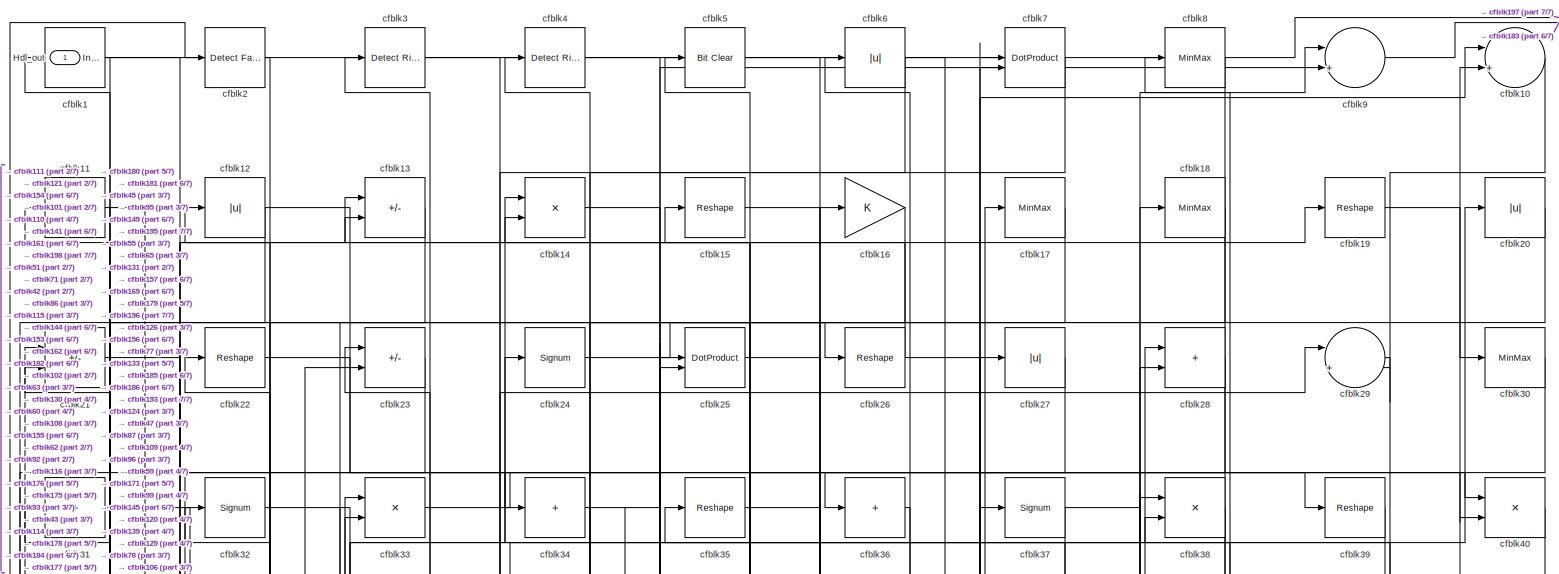
[diagram: root canvas - part 1/7, full width, top band]
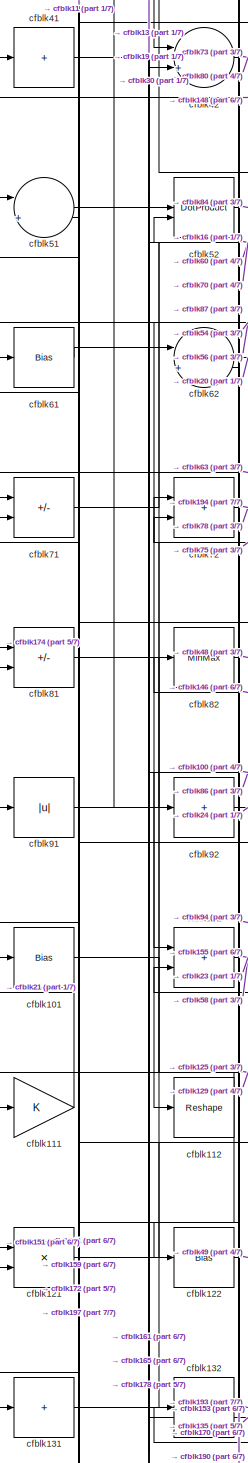
[diagram: root canvas - part 2/7, middle left region]
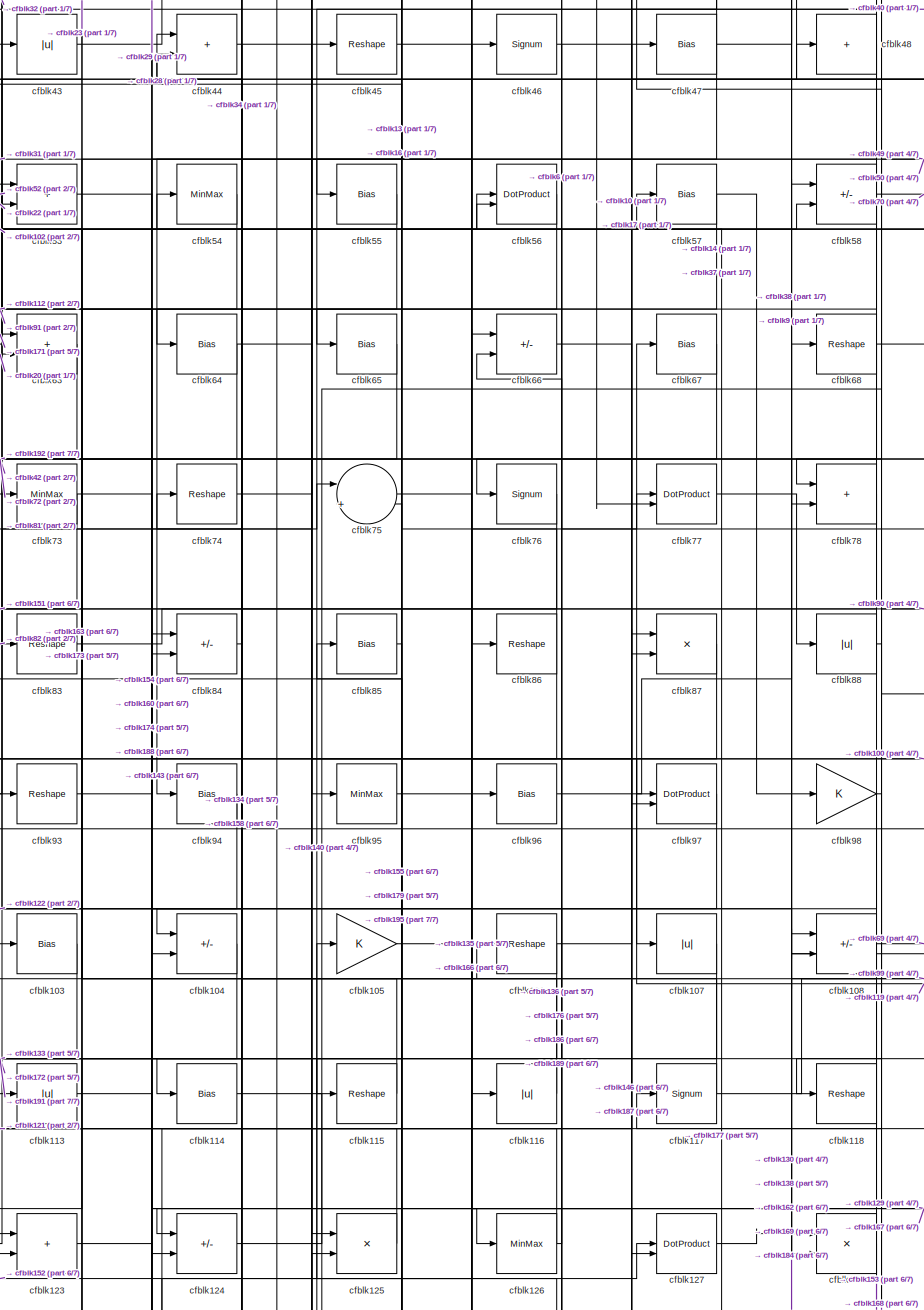
[diagram: root canvas - part 3/7, central region]
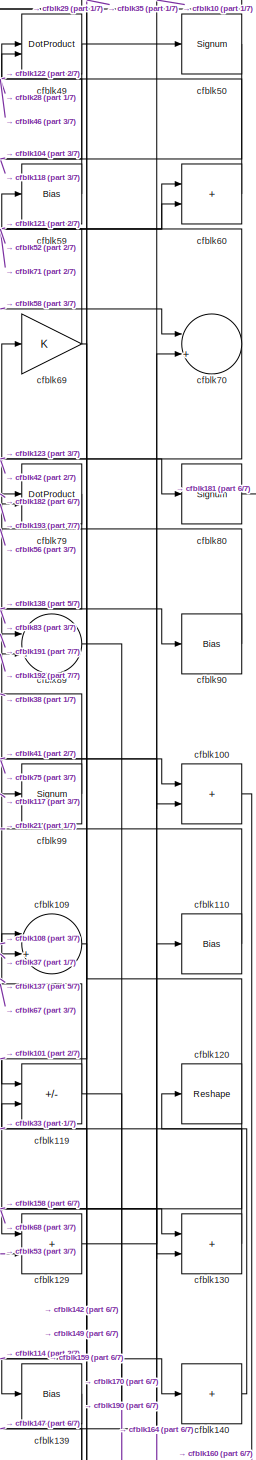
[diagram: root canvas - part 4/7, middle right region]
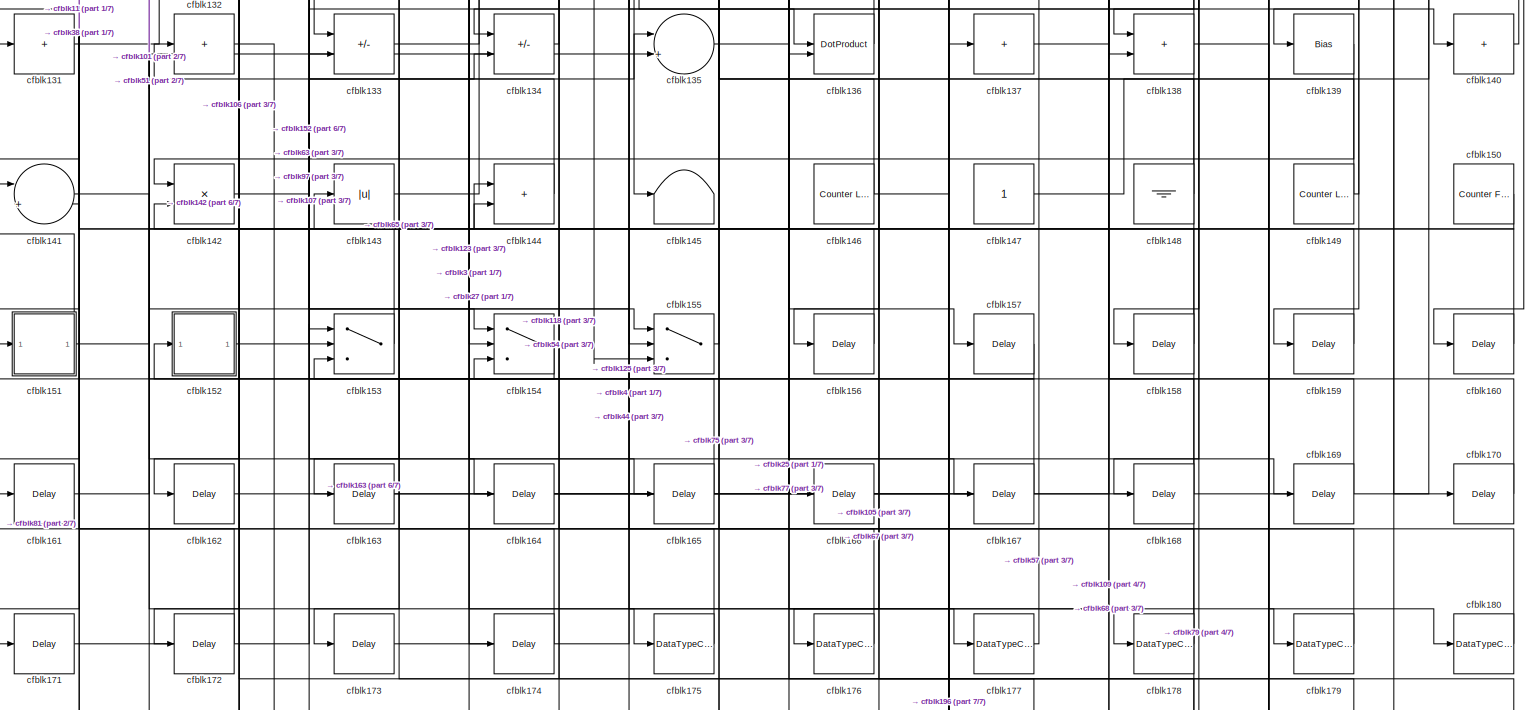
[diagram: root canvas - part 5/7, full width, bottom band]
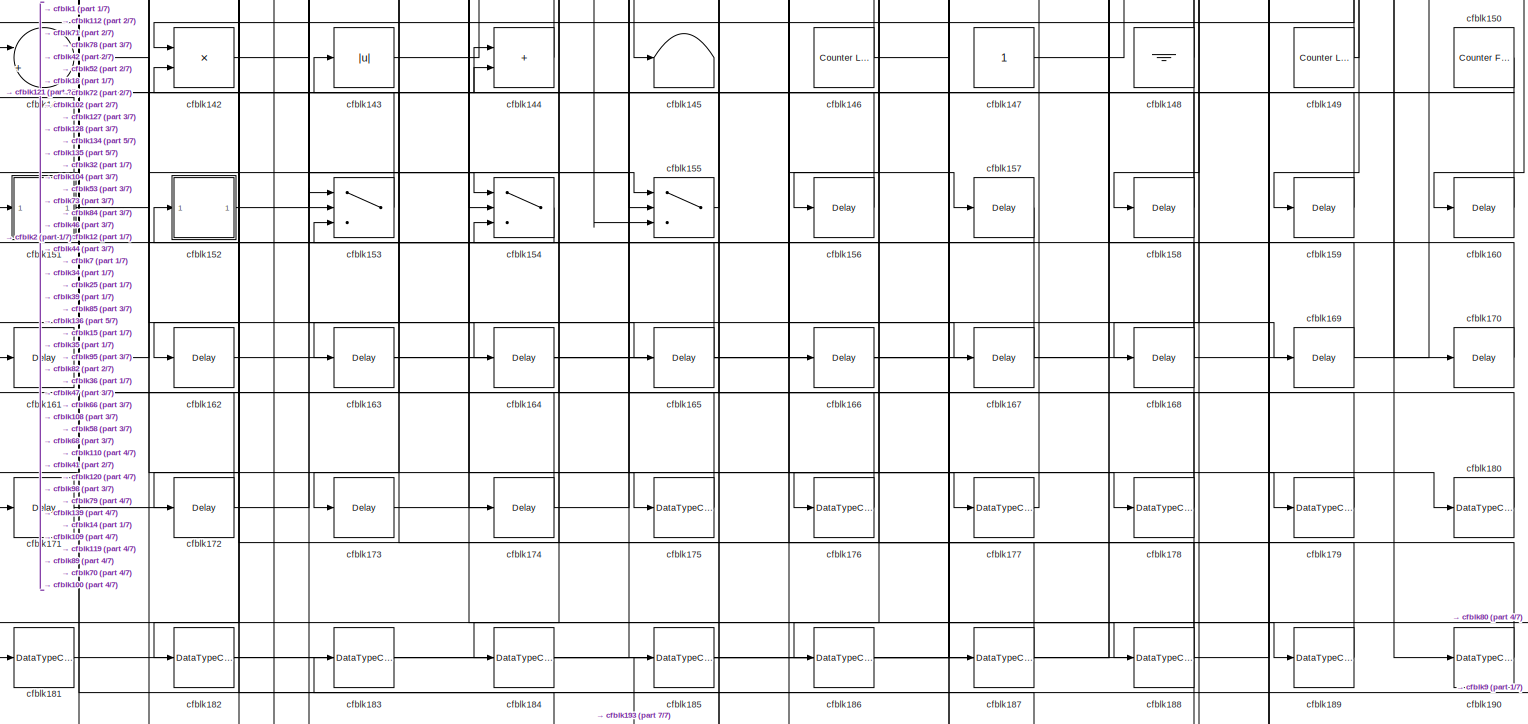
[diagram: root canvas - part 6/7, full width, bottom band]
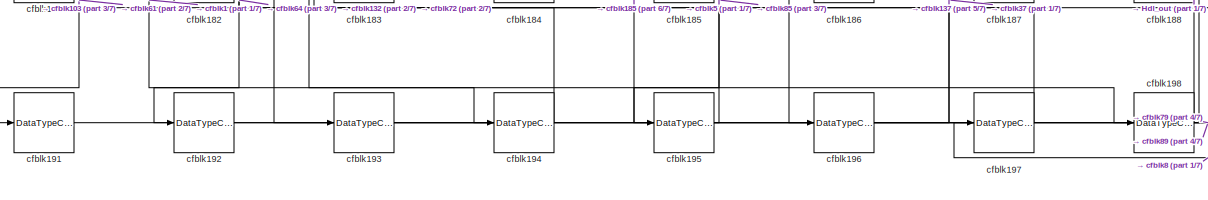
[diagram: root canvas - part 7/7, full width, bottom band]
MODEL slx_da9849ad95af
KIND model
CONFIG AbsTol = auto
CONFIG EnableMultiTasking = off
CONFIG FixedStep = auto
CONFIG MaxStep = auto
CONFIG MinStep = auto
CONFIG RelTol = 1e-3
CONFIG SampleTimeConstraint = Unconstrained
CONFIG SolverName = VariableStepAuto
CONFIG StartTime = 0.0
CONFIG StopTime = 10.0
BLOCK [Outport] Hdl_out
  OutDataTypeStr = uint8
BLOCK [Reference] cfblk1  REF=simulink/Logic and Bit
Operations/Detect
Increase
  LibrarySourceBlock = hdlsllib/Logic and Bit\nOperations/Detect\nIncrease
  SourceBlock = simulink/Logic and Bit\nOperations/Detect\nIncrease
  SourceType = Detect Increase
BLOCK [Sum] cfblk10
  Inputs = |++
  OutDataTypeStr = uint8
BLOCK [Sum] cfblk100
  IconShape = rectangular
  OutDataTypeStr = uint8
BLOCK [Bias] cfblk101
  Bias = 0.0
  SaturateOnIntegerOverflow = off
BLOCK [Sum] cfblk102
  IconShape = rectangular
  OutDataTypeStr = uint8
BLOCK [Bias] cfblk103
  Bias = 0.0
  SaturateOnIntegerOverflow = off
BLOCK [Sum] cfblk104
  IconShape = rectangular
  Inputs = +-
  OutDataTypeStr = uint8
BLOCK [Gain] cfblk105
  OutDataTypeStr = uint8
BLOCK [Reshape] cfblk106
BLOCK [Abs] cfblk107
  OutDataTypeStr = uint8
  SaturateOnIntegerOverflow = off
BLOCK [Sum] cfblk108
  IconShape = rectangular
  Inputs = +-
  OutDataTypeStr = uint8
BLOCK [Sum] cfblk109
  Inputs = |++
  OutDataTypeStr = uint8
BLOCK [Bias] cfblk11
  Bias = 0.0
  SaturateOnIntegerOverflow = off
BLOCK [Bias] cfblk110
  Bias = 0.0
  SaturateOnIntegerOverflow = off
BLOCK [Gain] cfblk111
  OutDataTypeStr = uint8
BLOCK [Reshape] cfblk112
BLOCK [Abs] cfblk113
  OutDataTypeStr = uint8
  SaturateOnIntegerOverflow = off
BLOCK [Bias] cfblk114
  Bias = 0.0
  SaturateOnIntegerOverflow = off
BLOCK [Reshape] cfblk115
BLOCK [Abs] cfblk116
  OutDataTypeStr = uint8
  SaturateOnIntegerOverflow = off
BLOCK [Signum] cfblk117
BLOCK [Reshape] cfblk118
BLOCK [Sum] cfblk119
  IconShape = rectangular
  Inputs = +-
  OutDataTypeStr = uint8
BLOCK [Abs] cfblk12
  OutDataTypeStr = uint8
  SaturateOnIntegerOverflow = off
BLOCK [Reshape] cfblk120
BLOCK [Product] cfblk121
  Inputs = */
  OutDataTypeStr = uint8
  RndMeth = Zero
  SaturateOnIntegerOverflow = on
BLOCK [Bias] cfblk122
  Bias = 0.0
  SaturateOnIntegerOverflow = off
BLOCK [Sum] cfblk123
  IconShape = rectangular
  OutDataTypeStr = uint8
BLOCK [Sum] cfblk124
  IconShape = rectangular
  Inputs = +-
  OutDataTypeStr = uint8
BLOCK [Product] cfblk125
  Inputs = */
  OutDataTypeStr = uint8
  RndMeth = Zero
  SaturateOnIntegerOverflow = on
BLOCK [MinMax] cfblk126
  OutDataTypeStr = uint8
BLOCK [DotProduct] cfblk127
  OutDataTypeStr = uint8
BLOCK [Product] cfblk128
  Inputs = */
  OutDataTypeStr = uint8
  RndMeth = Zero
  SaturateOnIntegerOverflow = on
BLOCK [Sum] cfblk129
  IconShape = rectangular
  OutDataTypeStr = uint8
BLOCK [Sum] cfblk13
  IconShape = rectangular
  Inputs = +-
  OutDataTypeStr = uint8
BLOCK [Sum] cfblk130
  IconShape = rectangular
  OutDataTypeStr = uint8
BLOCK [Sum] cfblk131
  IconShape = rectangular
  Inputs = +
  OutDataTypeStr = uint8
BLOCK [Sum] cfblk132
  IconShape = rectangular
  Inputs = +
  OutDataTypeStr = uint8
BLOCK [Sum] cfblk133
  IconShape = rectangular
  Inputs = +-
  OutDataTypeStr = uint8
BLOCK [Sum] cfblk134
  IconShape = rectangular
  Inputs = +-
  OutDataTypeStr = uint8
BLOCK [Sum] cfblk135
  Inputs = |++
  OutDataTypeStr = uint8
BLOCK [DotProduct] cfblk136
  OutDataTypeStr = uint8
BLOCK [Sum] cfblk137
  IconShape = rectangular
  Inputs = +
  OutDataTypeStr = uint8
BLOCK [Sum] cfblk138
  IconShape = rectangular
  OutDataTypeStr = uint8
BLOCK [Bias] cfblk139
  Bias = 0.0
  SaturateOnIntegerOverflow = off
BLOCK [Product] cfblk14
  Inputs = */
  OutDataTypeStr = uint8
  RndMeth = Zero
  SaturateOnIntegerOverflow = on
BLOCK [Sum] cfblk140
  IconShape = rectangular
  Inputs = +
  OutDataTypeStr = uint8
BLOCK [Sum] cfblk141
  Inputs = |++
  OutDataTypeStr = uint8
BLOCK [Product] cfblk142
  Inputs = */
  OutDataTypeStr = uint8
  RndMeth = Zero
  SaturateOnIntegerOverflow = on
BLOCK [Abs] cfblk143
  OutDataTypeStr = uint8
  SaturateOnIntegerOverflow = off
BLOCK [Sum] cfblk144
  IconShape = rectangular
  OutDataTypeStr = uint8
BLOCK [Terminator] cfblk145
BLOCK [Reference] cfblk146  REF=hdlsllib/Sources/Counter
Limited
  SourceBlock = hdlsllib/Sources/Counter\nLimited
  SourceType = Counter Limited
BLOCK [Constant] cfblk147
  OutDataTypeStr = uint8
  SampleTime = -1
BLOCK [Ground] cfblk148
BLOCK [Reference] cfblk149  REF=hdlsllib/Sources/Counter
Limited
  SourceBlock = hdlsllib/Sources/Counter\nLimited
  SourceType = Counter Limited
BLOCK [Reshape] cfblk15
BLOCK [Reference] cfblk150  REF=hdlsllib/Sources/Counter
Free-Running
  SourceBlock = hdlsllib/Sources/Counter\nFree-Running
  SourceType = Counter Free-Running
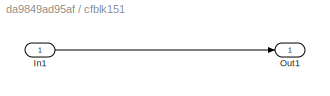
BLOCK [SubSystem] cfblk151
  LibrarySourceBlock = hdlsllib/Ports &\nSubsystems/Subsystem
BLOCK [Inport] cfblk151/In1
BLOCK [Outport] cfblk151/Out1
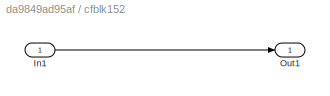
BLOCK [SubSystem] cfblk152
  LibrarySourceBlock = hdlsllib/Ports &\nSubsystems/Subsystem
BLOCK [Inport] cfblk152/In1
BLOCK [Outport] cfblk152/Out1
BLOCK [Switch] cfblk153
  InputSameDT = off
  OutDataTypeStr = uint8
  SaturateOnIntegerOverflow = off
BLOCK [Switch] cfblk154
  InputSameDT = off
  OutDataTypeStr = uint8
  SaturateOnIntegerOverflow = off
BLOCK [Switch] cfblk155
  InputSameDT = off
  OutDataTypeStr = uint8
  SaturateOnIntegerOverflow = off
BLOCK [Delay] cfblk156
  InputPortMap = u0
  SampleTime = 1
BLOCK [Delay] cfblk157
  InputPortMap = u0
  SampleTime = 1
BLOCK [Delay] cfblk158
  InputPortMap = u0
  SampleTime = 1
BLOCK [Delay] cfblk159
  InputPortMap = u0
  SampleTime = 1
BLOCK [Gain] cfblk16
  OutDataTypeStr = uint8
BLOCK [Delay] cfblk160
  InputPortMap = u0
  SampleTime = 1
BLOCK [Delay] cfblk161
  InputPortMap = u0
  SampleTime = 1
BLOCK [Delay] cfblk162
  InputPortMap = u0
  SampleTime = 1
BLOCK [Delay] cfblk163
  InputPortMap = u0
  SampleTime = 1
BLOCK [Delay] cfblk164
  InputPortMap = u0
  SampleTime = 1
BLOCK [Delay] cfblk165
  InputPortMap = u0
  SampleTime = 1
BLOCK [Delay] cfblk166
  InputPortMap = u0
  SampleTime = 1
BLOCK [Delay] cfblk167
  InputPortMap = u0
  SampleTime = 1
BLOCK [Delay] cfblk168
  InputPortMap = u0
  SampleTime = 1
BLOCK [Delay] cfblk169
  InputPortMap = u0
  SampleTime = 1
BLOCK [MinMax] cfblk17
  OutDataTypeStr = uint8
BLOCK [Delay] cfblk170
  InputPortMap = u0
  SampleTime = 1
BLOCK [Delay] cfblk171
  InputPortMap = u0
  SampleTime = 1
BLOCK [Delay] cfblk172
  InputPortMap = u0
  SampleTime = 1
BLOCK [Delay] cfblk173
  InputPortMap = u0
  SampleTime = 1
BLOCK [Delay] cfblk174
  InputPortMap = u0
  SampleTime = 1
BLOCK [DataTypeConversion] cfblk175
  OutDataTypeStr = uint8
  RndMeth = Floor
  SaturateOnIntegerOverflow = off
BLOCK [DataTypeConversion] cfblk176
  OutDataTypeStr = uint8
  RndMeth = Floor
  SaturateOnIntegerOverflow = off
BLOCK [DataTypeConversion] cfblk177
  OutDataTypeStr = uint8
  RndMeth = Floor
  SaturateOnIntegerOverflow = off
BLOCK [DataTypeConversion] cfblk178
  OutDataTypeStr = uint8
  RndMeth = Floor
  SaturateOnIntegerOverflow = off
BLOCK [DataTypeConversion] cfblk179
  OutDataTypeStr = uint8
  RndMeth = Floor
  SaturateOnIntegerOverflow = off
BLOCK [MinMax] cfblk18
  OutDataTypeStr = uint8
BLOCK [DataTypeConversion] cfblk180
  OutDataTypeStr = uint8
  RndMeth = Floor
  SaturateOnIntegerOverflow = off
BLOCK [DataTypeConversion] cfblk181
  OutDataTypeStr = uint8
  RndMeth = Floor
  SaturateOnIntegerOverflow = off
BLOCK [DataTypeConversion] cfblk182
  OutDataTypeStr = uint8
  RndMeth = Floor
  SaturateOnIntegerOverflow = off
BLOCK [DataTypeConversion] cfblk183
  OutDataTypeStr = uint8
  RndMeth = Floor
  SaturateOnIntegerOverflow = off
BLOCK [DataTypeConversion] cfblk184
  OutDataTypeStr = uint8
  RndMeth = Floor
  SaturateOnIntegerOverflow = off
BLOCK [DataTypeConversion] cfblk185
  OutDataTypeStr = uint8
  RndMeth = Floor
  SaturateOnIntegerOverflow = off
BLOCK [DataTypeConversion] cfblk186
  OutDataTypeStr = uint8
  RndMeth = Floor
  SaturateOnIntegerOverflow = off
BLOCK [DataTypeConversion] cfblk187
  OutDataTypeStr = uint8
  RndMeth = Floor
  SaturateOnIntegerOverflow = off
BLOCK [DataTypeConversion] cfblk188
  OutDataTypeStr = uint8
  RndMeth = Floor
  SaturateOnIntegerOverflow = off
BLOCK [DataTypeConversion] cfblk189
  OutDataTypeStr = uint8
  RndMeth = Floor
  SaturateOnIntegerOverflow = off
BLOCK [Reshape] cfblk19
BLOCK [DataTypeConversion] cfblk190
  OutDataTypeStr = uint8
  RndMeth = Floor
  SaturateOnIntegerOverflow = off
BLOCK [DataTypeConversion] cfblk191
  OutDataTypeStr = uint8
  RndMeth = Floor
  SaturateOnIntegerOverflow = off
BLOCK [DataTypeConversion] cfblk192
  OutDataTypeStr = uint8
  RndMeth = Floor
  SaturateOnIntegerOverflow = off
BLOCK [DataTypeConversion] cfblk193
  OutDataTypeStr = uint8
  RndMeth = Floor
  SaturateOnIntegerOverflow = off
BLOCK [DataTypeConversion] cfblk194
  OutDataTypeStr = uint8
  RndMeth = Floor
  SaturateOnIntegerOverflow = off
BLOCK [DataTypeConversion] cfblk195
  OutDataTypeStr = uint8
  RndMeth = Floor
  SaturateOnIntegerOverflow = off
BLOCK [DataTypeConversion] cfblk196
  OutDataTypeStr = uint8
  RndMeth = Floor
  SaturateOnIntegerOverflow = off
BLOCK [DataTypeConversion] cfblk197
  OutDataTypeStr = uint8
  RndMeth = Floor
  SaturateOnIntegerOverflow = off
BLOCK [DataTypeConversion] cfblk198
  OutDataTypeStr = uint8
  RndMeth = Floor
  SaturateOnIntegerOverflow = off
BLOCK [Reference] cfblk2  REF=hdlsllib/Logic and Bit
Operations/Detect Fall
Nonpositive
  SourceBlock = hdlsllib/Logic and Bit\nOperations/Detect Fall\nNonpositive
  SourceType = Detect Fall Nonpositive
BLOCK [Abs] cfblk20
  OutDataTypeStr = uint8
  SaturateOnIntegerOverflow = off
BLOCK [Sum] cfblk21
  IconShape = rectangular
  Inputs = +-
  OutDataTypeStr = uint8
BLOCK [Reshape] cfblk22
BLOCK [Sum] cfblk23
  IconShape = rectangular
  Inputs = +-
  OutDataTypeStr = uint8
BLOCK [Signum] cfblk24
BLOCK [DotProduct] cfblk25
  OutDataTypeStr = uint8
BLOCK [Reshape] cfblk26
BLOCK [Abs] cfblk27
  OutDataTypeStr = uint8
  SaturateOnIntegerOverflow = off
BLOCK [Sum] cfblk28
  IconShape = rectangular
  OutDataTypeStr = uint8
BLOCK [Sum] cfblk29
  Inputs = |++
  OutDataTypeStr = uint8
BLOCK [Reference] cfblk3  REF=hdlsllib/Logic and Bit
Operations/Detect Rise
Positive
  SourceBlock = hdlsllib/Logic and Bit\nOperations/Detect Rise\nPositive
  SourceType = Detect Rise Positive
BLOCK [MinMax] cfblk30
  OutDataTypeStr = uint8
BLOCK [Sum] cfblk31
  IconShape = rectangular
  Inputs = +
  OutDataTypeStr = uint8
BLOCK [Signum] cfblk32
BLOCK [Product] cfblk33
  Inputs = */
  OutDataTypeStr = uint8
  RndMeth = Zero
  SaturateOnIntegerOverflow = on
BLOCK [Sum] cfblk34
  IconShape = rectangular
  Inputs = +
  OutDataTypeStr = uint8
BLOCK [Reshape] cfblk35
BLOCK [Sum] cfblk36
  IconShape = rectangular
  Inputs = +
  OutDataTypeStr = uint8
BLOCK [Signum] cfblk37
BLOCK [Product] cfblk38
  Inputs = */
  OutDataTypeStr = uint8
  RndMeth = Zero
  SaturateOnIntegerOverflow = on
BLOCK [Reshape] cfblk39
BLOCK [Reference] cfblk4  REF=hdlsllib/Logic and Bit
Operations/Detect Rise
Positive
  SourceBlock = hdlsllib/Logic and Bit\nOperations/Detect Rise\nPositive
  SourceType = Detect Rise Positive
BLOCK [Product] cfblk40
  Inputs = */
  OutDataTypeStr = uint8
  RndMeth = Zero
  SaturateOnIntegerOverflow = on
BLOCK [Sum] cfblk41
  IconShape = rectangular
  Inputs = +
  OutDataTypeStr = uint8
BLOCK [Sum] cfblk42
  Inputs = |++
  OutDataTypeStr = uint8
BLOCK [Abs] cfblk43
  OutDataTypeStr = uint8
  SaturateOnIntegerOverflow = off
BLOCK [Sum] cfblk44
  IconShape = rectangular
  OutDataTypeStr = uint8
BLOCK [Reshape] cfblk45
BLOCK [Signum] cfblk46
BLOCK [Bias] cfblk47
  Bias = 0.0
  SaturateOnIntegerOverflow = off
BLOCK [Sum] cfblk48
  IconShape = rectangular
  Inputs = +
  OutDataTypeStr = uint8
BLOCK [DotProduct] cfblk49
  OutDataTypeStr = uint8
BLOCK [Reference] cfblk5  REF=simulink/Logic and Bit
Operations/Bit Clear
  LibrarySourceBlock = hdlsllib/Logic and Bit\nOperations/Bit Clear
  SourceBlock = simulink/Logic and Bit\nOperations/Bit Clear
  SourceType = Bit Clear
BLOCK [Signum] cfblk50
BLOCK [Sum] cfblk51
  Inputs = |++
  OutDataTypeStr = uint8
BLOCK [DotProduct] cfblk52
  OutDataTypeStr = uint8
BLOCK [Sum] cfblk53
  IconShape = rectangular
  OutDataTypeStr = uint8
BLOCK [MinMax] cfblk54
  OutDataTypeStr = uint8
BLOCK [Bias] cfblk55
  Bias = 0.0
  SaturateOnIntegerOverflow = off
BLOCK [DotProduct] cfblk56
  OutDataTypeStr = uint8
BLOCK [Bias] cfblk57
  Bias = 0.0
  SaturateOnIntegerOverflow = off
BLOCK [Sum] cfblk58
  IconShape = rectangular
  Inputs = +-
  OutDataTypeStr = uint8
BLOCK [Bias] cfblk59
  Bias = 0.0
  SaturateOnIntegerOverflow = off
BLOCK [Abs] cfblk6
  OutDataTypeStr = uint8
  SaturateOnIntegerOverflow = off
BLOCK [Sum] cfblk60
  IconShape = rectangular
  OutDataTypeStr = uint8
BLOCK [Bias] cfblk61
  Bias = 0.0
  SaturateOnIntegerOverflow = off
BLOCK [Sum] cfblk62
  Inputs = |++
  OutDataTypeStr = uint8
BLOCK [Sum] cfblk63
  IconShape = rectangular
  OutDataTypeStr = uint8
BLOCK [Bias] cfblk64
  Bias = 0.0
  SaturateOnIntegerOverflow = off
BLOCK [Bias] cfblk65
  Bias = 0.0
  SaturateOnIntegerOverflow = off
BLOCK [Sum] cfblk66
  IconShape = rectangular
  Inputs = +-
  OutDataTypeStr = uint8
BLOCK [Bias] cfblk67
  Bias = 0.0
  SaturateOnIntegerOverflow = off
BLOCK [Reshape] cfblk68
BLOCK [Gain] cfblk69
  OutDataTypeStr = uint8
BLOCK [DotProduct] cfblk7
  OutDataTypeStr = uint8
BLOCK [Sum] cfblk70
  Inputs = |++
  OutDataTypeStr = uint8
BLOCK [Sum] cfblk71
  IconShape = rectangular
  Inputs = +-
  OutDataTypeStr = uint8
BLOCK [Sum] cfblk72
  IconShape = rectangular
  OutDataTypeStr = uint8
BLOCK [MinMax] cfblk73
  OutDataTypeStr = uint8
BLOCK [Reshape] cfblk74
BLOCK [Sum] cfblk75
  Inputs = |++
  OutDataTypeStr = uint8
BLOCK [Signum] cfblk76
BLOCK [DotProduct] cfblk77
  OutDataTypeStr = uint8
BLOCK [Sum] cfblk78
  IconShape = rectangular
  OutDataTypeStr = uint8
BLOCK [DotProduct] cfblk79
  OutDataTypeStr = uint8
BLOCK [MinMax] cfblk8
  OutDataTypeStr = uint8
BLOCK [Signum] cfblk80
BLOCK [Sum] cfblk81
  IconShape = rectangular
  Inputs = +-
  OutDataTypeStr = uint8
BLOCK [MinMax] cfblk82
  OutDataTypeStr = uint8
BLOCK [Reshape] cfblk83
BLOCK [Sum] cfblk84
  IconShape = rectangular
  Inputs = +-
  OutDataTypeStr = uint8
BLOCK [Bias] cfblk85
  Bias = 0.0
  SaturateOnIntegerOverflow = off
BLOCK [Reshape] cfblk86
BLOCK [Product] cfblk87
  Inputs = */
  OutDataTypeStr = uint8
  RndMeth = Zero
  SaturateOnIntegerOverflow = on
BLOCK [Abs] cfblk88
  OutDataTypeStr = uint8
  SaturateOnIntegerOverflow = off
BLOCK [Sum] cfblk89
  Inputs = |++
  OutDataTypeStr = uint8
BLOCK [Sum] cfblk9
  Inputs = |++
  OutDataTypeStr = uint8
BLOCK [Bias] cfblk90
  Bias = 0.0
  SaturateOnIntegerOverflow = off
BLOCK [Abs] cfblk91
  OutDataTypeStr = uint8
  SaturateOnIntegerOverflow = off
BLOCK [Sum] cfblk92
  IconShape = rectangular
  Inputs = +
  OutDataTypeStr = uint8
BLOCK [Reshape] cfblk93
BLOCK [Bias] cfblk94
  Bias = 0.0
  SaturateOnIntegerOverflow = off
BLOCK [MinMax] cfblk95
  OutDataTypeStr = uint8
BLOCK [Bias] cfblk96
  Bias = 0.0
  SaturateOnIntegerOverflow = off
BLOCK [DotProduct] cfblk97
  OutDataTypeStr = uint8
BLOCK [Gain] cfblk98
  OutDataTypeStr = uint8
BLOCK [Signum] cfblk99
LINE cfblk100:1 -> cfblk160:1
NET cfblk101:1 -> cfblk129:1, cfblk178:1
NET cfblk102:1 -> cfblk155:2, cfblk23:2, cfblk58:2
LINE cfblk103:1 -> cfblk191:1
LINE cfblk104:1 -> cfblk163:1
LINE cfblk105:1 -> cfblk116:1
NET cfblk106:1 -> cfblk10:1, cfblk172:1
LINE cfblk107:1 -> cfblk133:1
LINE cfblk108:1 -> cfblk69:1
LINE cfblk109:1 -> cfblk159:1
LINE cfblk10:1 -> cfblk29:2
LINE cfblk110:1 -> cfblk21:2
LINE cfblk111:1 -> cfblk21:1
NET cfblk112:1 -> cfblk111:1, cfblk141:1
LINE cfblk113:1 -> cfblk126:1
LINE cfblk114:1 -> cfblk140:1
NET cfblk115:1 -> cfblk22:1, cfblk53:2
NET cfblk116:1 -> cfblk23:1, cfblk43:1
NET cfblk117:1 -> cfblk74:1, cfblk99:1
NET cfblk118:1 -> cfblk106:1, cfblk134:1, cfblk53:1
NET cfblk119:1 -> cfblk170:1, cfblk67:1
NET cfblk11:1 -> cfblk101:1, cfblk92:1
NET cfblk120:1 -> cfblk158:1, cfblk35:1
NET cfblk121:1 -> cfblk60:2, cfblk87:1
NET cfblk122:1 -> cfblk49:1, cfblk62:2
LINE cfblk123:1 -> cfblk174:1
LINE cfblk124:1 -> cfblk17:1
LINE cfblk125:1 -> cfblk113:1
NET cfblk126:1 -> cfblk31:1, cfblk6:1
LINE cfblk127:1 -> cfblk128:1
LINE cfblk128:1 -> cfblk153:2
LINE cfblk129:1 -> cfblk10:2
NET cfblk12:1 -> cfblk161:1, cfblk34:1
LINE cfblk130:1 -> cfblk33:1
LINE cfblk131:1 -> cfblk16:1
LINE cfblk132:1 -> cfblk193:1
LINE cfblk133:1 -> cfblk27:1
LINE cfblk134:1 -> cfblk54:1
LINE cfblk135:1 -> cfblk77:1
LINE cfblk136:1 -> cfblk105:1
LINE cfblk137:1 -> cfblk109:1
LINE cfblk138:1 -> cfblk180:1
LINE cfblk139:1 -> cfblk142:1
LINE cfblk13:1 -> cfblk131:1
LINE cfblk140:1 -> cfblk120:1
LINE cfblk141:1 -> cfblk165:1
NET cfblk142:1 -> cfblk134:2, cfblk164:1
LINE cfblk143:1 -> cfblk46:1
LINE cfblk144:1 -> cfblk12:1
NET cfblk146:1 -> cfblk47:1, cfblk82:1
LINE cfblk147:1 -> cfblk110:1
LINE cfblk148:1 -> cfblk41:1
NET cfblk149:1 -> cfblk119:2, cfblk14:2
LINE cfblk14:1 -> cfblk45:1
LINE cfblk150:1 -> cfblk142:2
LINE cfblk151/In1:1 -> cfblk151/Out1:1
NET cfblk151:1 -> cfblk121:1, cfblk144:1, cfblk154:1
LINE cfblk152/In1:1 -> cfblk152/Out1:1
NET cfblk152:1 -> cfblk127:1, cfblk135:1
NET cfblk153:1 -> cfblk32:1, cfblk72:1
LINE cfblk154:1 -> cfblk2:1
LINE cfblk155:1 -> cfblk85:1
LINE cfblk156:1 -> cfblk1:1
LINE cfblk157:1 -> cfblk153:3
LINE cfblk158:1 -> cfblk44:2
LINE cfblk159:1 -> cfblk71:1
LINE cfblk15:1 -> cfblk169:1
LINE cfblk160:1 -> cfblk84:1
LINE cfblk161:1 -> cfblk42:2
LINE cfblk162:1 -> cfblk128:2
LINE cfblk163:1 -> cfblk136:2
LINE cfblk164:1 -> cfblk70:2
LINE cfblk165:1 -> cfblk52:1
LINE cfblk166:1 -> cfblk189:1
LINE cfblk167:1 -> cfblk153:1
LINE cfblk168:1 -> cfblk108:1
LINE cfblk169:1 -> cfblk58:1
NET cfblk16:1 -> cfblk121:2, cfblk65:1
LINE cfblk170:1 -> cfblk102:2
LINE cfblk171:1 -> cfblk63:1
LINE cfblk172:1 -> cfblk51:1
LINE cfblk173:1 -> cfblk125:2
LINE cfblk174:1 -> cfblk81:1
LINE cfblk175:1 -> cfblk11:1
LINE cfblk176:1 -> cfblk3:1
LINE cfblk177:1 -> cfblk57:1
LINE cfblk178:1 -> cfblk4:1
LINE cfblk179:1 -> cfblk75:2
LINE cfblk17:1 -> cfblk114:1
LINE cfblk180:1 -> cfblk25:1
LINE cfblk181:1 -> cfblk25:2
LINE cfblk182:1 -> cfblk79:1
LINE cfblk183:1 -> cfblk18:1
LINE cfblk184:1 -> cfblk68:1
LINE cfblk185:1 -> cfblk7:1
LINE cfblk186:1 -> cfblk7:2
LINE cfblk187:1 -> cfblk143:1
LINE cfblk188:1 -> cfblk66:1
LINE cfblk189:1 -> cfblk66:2
LINE cfblk18:1 -> cfblk182:1
NET cfblk190:1 -> cfblk144:2, cfblk152:1, cfblk154:3, cfblk72:2
LINE cfblk191:1 -> cfblk89:1
LINE cfblk192:1 -> cfblk89:2
NET cfblk193:1 -> cfblk185:1, cfblk37:1, cfblk79:2
LINE cfblk194:1 -> cfblk132:1
LINE cfblk195:1 -> cfblk5:1
LINE cfblk196:1 -> cfblk137:1
LINE cfblk197:1 -> cfblk61:1
NET cfblk198:1 -> Hdl_out:1, cfblk8:1
LINE cfblk19:1 -> cfblk30:1
NET cfblk1:1 -> cfblk141:2, cfblk198:1
LINE cfblk20:1 -> cfblk63:2
LINE cfblk21:1 -> cfblk40:1
LINE cfblk22:1 -> cfblk95:1
LINE cfblk23:1 -> cfblk71:2
LINE cfblk24:1 -> cfblk26:1
LINE cfblk25:1 -> cfblk179:1
NET cfblk26:1 -> cfblk15:1, cfblk40:2
LINE cfblk27:1 -> cfblk36:1
LINE cfblk28:1 -> cfblk55:1
LINE cfblk29:1 -> cfblk139:1
LINE cfblk2:1 -> cfblk162:1
LINE cfblk30:1 -> cfblk42:1
LINE cfblk31:1 -> cfblk86:1
NET cfblk32:1 -> cfblk108:2, cfblk155:1
LINE cfblk33:1 -> cfblk39:1
NET cfblk34:1 -> cfblk124:1, cfblk155:3, cfblk9:2
LINE cfblk35:1 -> cfblk157:1
LINE cfblk36:1 -> cfblk156:1
NET cfblk37:1 -> cfblk109:2, cfblk87:2
LINE cfblk38:1 -> cfblk171:1
LINE cfblk39:1 -> cfblk145:1
LINE cfblk3:1 -> cfblk175:1
LINE cfblk40:1 -> cfblk78:1
LINE cfblk41:1 -> cfblk100:1
NET cfblk42:1 -> cfblk73:1, cfblk80:1
LINE cfblk43:1 -> cfblk28:2
NET cfblk44:1 -> cfblk136:1, cfblk64:1
NET cfblk45:1 -> cfblk127:2, cfblk96:1
NET cfblk46:1 -> cfblk49:2, cfblk76:1
NET cfblk47:1 -> cfblk123:1, cfblk14:1, cfblk9:1
LINE cfblk48:1 -> cfblk94:1
NET cfblk49:1 -> cfblk118:1, cfblk50:1
LINE cfblk4:1 -> cfblk177:1
LINE cfblk50:1 -> cfblk104:2
NET cfblk51:1 -> cfblk135:2, cfblk19:1
LINE cfblk52:1 -> cfblk84:2
NET cfblk53:1 -> cfblk129:2, cfblk167:1
LINE cfblk54:1 -> cfblk112:1
LINE cfblk55:1 -> cfblk104:1
LINE cfblk56:1 -> cfblk91:1
NET cfblk57:1 -> cfblk115:1, cfblk98:1
NET cfblk58:1 -> cfblk70:1, cfblk93:1
LINE cfblk59:1 -> cfblk28:1
LINE cfblk5:1 -> cfblk196:1
LINE cfblk60:1 -> cfblk33:2
LINE cfblk61:1 -> cfblk62:1
LINE cfblk62:1 -> cfblk20:1
LINE cfblk63:1 -> cfblk81:2
NET cfblk64:1 -> cfblk192:1, cfblk97:2
LINE cfblk65:1 -> cfblk173:1
LINE cfblk66:1 -> cfblk187:1
LINE cfblk67:1 -> cfblk176:1
NET cfblk68:1 -> cfblk130:1, cfblk138:2
NET cfblk69:1 -> cfblk119:1, cfblk59:1
NET cfblk6:1 -> cfblk124:2, cfblk77:2
NET cfblk70:1 -> cfblk123:2, cfblk52:2
NET cfblk71:1 -> cfblk13:2, cfblk51:2, cfblk60:1
NET cfblk72:1 -> cfblk194:1, cfblk78:2
NET cfblk73:1 -> cfblk188:1, cfblk83:1
LINE cfblk74:1 -> cfblk56:2
NET cfblk75:1 -> cfblk100:2, cfblk130:2
LINE cfblk76:1 -> cfblk103:1
LINE cfblk77:1 -> cfblk88:1
LINE cfblk78:1 -> cfblk151:1
LINE cfblk79:1 -> cfblk138:1
LINE cfblk7:1 -> cfblk184:1
LINE cfblk80:1 -> cfblk181:1
LINE cfblk81:1 -> cfblk125:1
LINE cfblk82:1 -> cfblk48:1
LINE cfblk83:1 -> cfblk90:1
LINE cfblk84:1 -> cfblk44:1
LINE cfblk85:1 -> cfblk195:1
NET cfblk86:1 -> cfblk102:1, cfblk13:1
LINE cfblk87:1 -> cfblk107:1
LINE cfblk88:1 -> cfblk117:1
LINE cfblk89:1 -> cfblk190:1
LINE cfblk8:1 -> cfblk197:1
LINE cfblk90:1 -> cfblk56:1
LINE cfblk91:1 -> cfblk75:1
LINE cfblk92:1 -> cfblk24:1
NET cfblk93:1 -> cfblk29:1, cfblk97:1
LINE cfblk94:1 -> cfblk122:1
LINE cfblk95:1 -> cfblk166:1
LINE cfblk96:1 -> cfblk38:1
LINE cfblk97:1 -> cfblk133:2
NET cfblk98:1 -> cfblk154:2, cfblk168:1, cfblk186:1
LINE cfblk99:1 -> cfblk38:2
LINE cfblk9:1 -> cfblk183:1
note: NET lines group one-source signal fan-out (src -> all destinations, sorted); 1:1 wires keep LINE
